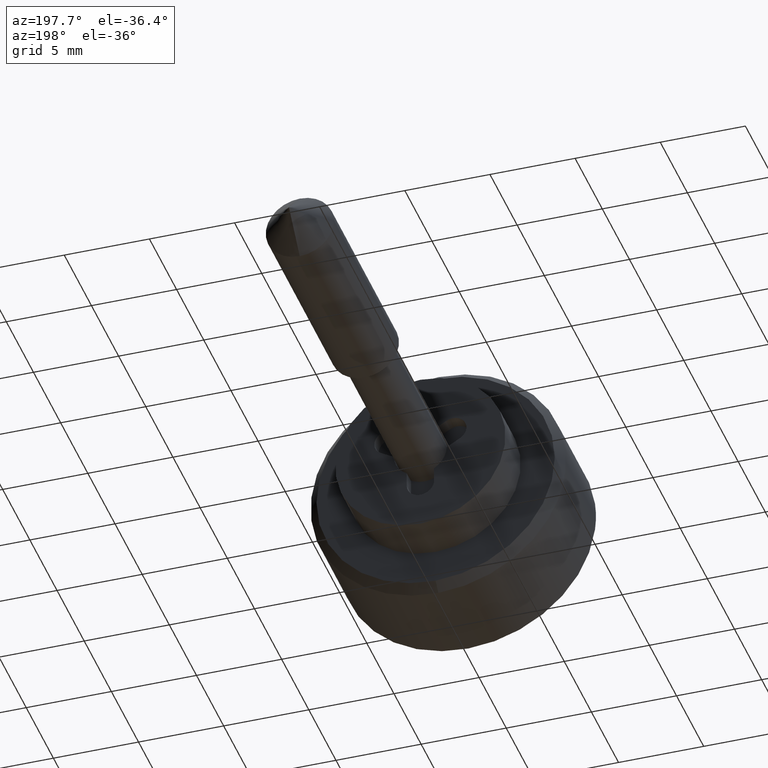
[diagram: clean part render]
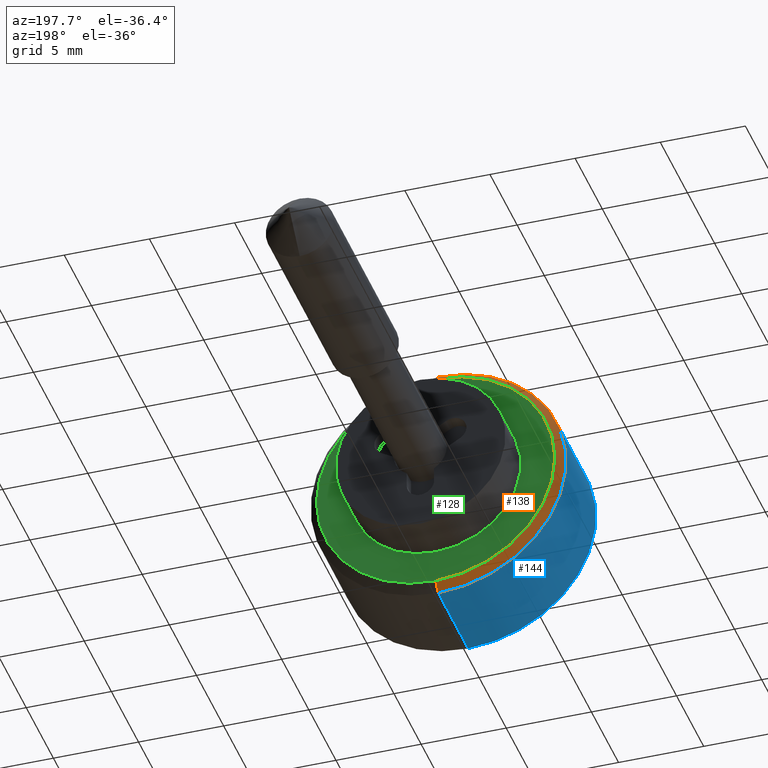
[diagram: same view with three faces highlighted in distinct colors, each labeled with its STEP entity id]
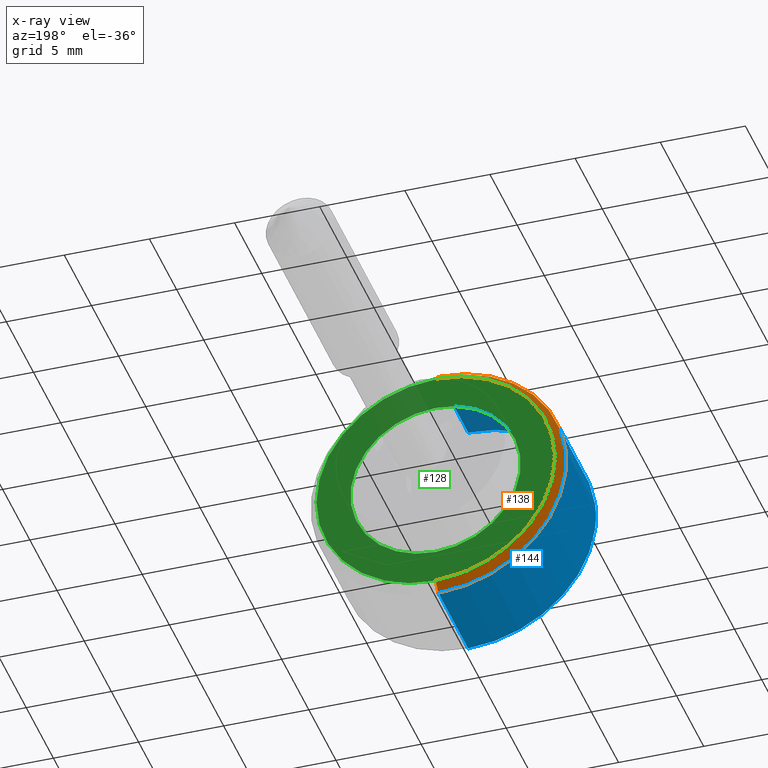
[diagram: x-ray of the same camera — body ghosted, the three highlighted faces saturated]
A machine part, auxiliary view with three faces highlighted in distinct colors.
The next image is the same camera in x-ray (body ghosted, the three faces saturated) — at least one of them is partly hidden behind the body in this view.
Their STEP definitions:

[orange] entity #138 — the highlighted face is a freeform B-spline surface patch.
#138=ADVANCED_FACE('',(#416),#415,.T.);
#415=( BOUNDED_SURFACE() B_SPLINE_SURFACE( 2,1,((#682,#683),(#684,#685),(#686,#687),(#688,#689),(#690,#691)), .UNSPECIFIED.,.F.,.F.,.F.) B_SPLINE_SURFACE_WITH_KNOTS((3,2,3),(2,2),(0.00000000000E+00,5.00000000000E-01,1.00000000000E+00),(0.00000000000E+00,1.00000000000E+00), .UNSPECIFIED. ) GEOMETRIC_REPRESENTATION_ITEM() RATIONAL_B_SPLINE_SURFACE(((1.00000000000E+00,1.00000000000E+00),(7.07106781187E-01,7.07106781187E-01),(1.00000000000E+00,1.00000000000E+00),(7.07106781187E-01,7.07106781187E-01),(1.00000000000E+00,1.00000000000E+00))) REPRESENTATION_ITEM('') SURFACE() );
#416=FACE_OUTER_BOUND('',#692,.T.);
#682=CARTESIAN_POINT('',(5.00000000000E+00,0.00000000000E+00,0.00000000000E+00));
#683=CARTESIAN_POINT('',(-5.60660171780E+00,3.89680225306E-15,1.06066017178E+01));
#684=CARTESIAN_POINT('',(5.00000000000E+00,0.00000000000E+00,0.00000000000E+00));
#685=CARTESIAN_POINT('',(-5.60660171780E+00,1.06066017178E+01,1.06066017178E+01));
#686=CARTESIAN_POINT('',(5.00000000000E+00,0.00000000000E+00,0.00000000000E+00));
#687=CARTESIAN_POINT('',(-5.60660171780E+00,1.06066017178E+01,-3.24733521088E-15));
#688=CARTESIAN_POINT('',(5.00000000000E+00,0.00000000000E+00,0.00000000000E+00));
#689=CARTESIAN_POINT('',(-5.60660171780E+00,1.06066017178E+01,-1.06066017178E+01));
#690=CARTESIAN_POINT('',(5.00000000000E+00,0.00000000000E+00,0.00000000000E+00));
#691=CARTESIAN_POINT('',(-5.60660171780E+00,-2.59786816871E-15,-1.06066017178E+01));
#692=EDGE_LOOP('',(#888,#889,#890,#891));
#888=ORIENTED_EDGE('',*,*,#1008,.F.);
#889=ORIENTED_EDGE('',*,*,#1009,.F.);
#890=ORIENTED_EDGE('',*,*,#980,.F.);
#891=ORIENTED_EDGE('',*,*,#1010,.T.);
#980=EDGE_CURVE('',#1304,#1305,#1306,.T.);
#1008=EDGE_CURVE('',#1494,#1495,#1496,.T.);
#1009=EDGE_CURVE('',#1305,#1494,#1502,.T.);
#1010=EDGE_CURVE('',#1304,#1495,#1508,.T.);
#1304=VERTEX_POINT('',#1763);
#1305=VERTEX_POINT('',#1764);
#1306=CIRCLE('',#1768,7.00000000000E+00);
#1494=VERTEX_POINT('',#1893);
#1495=VERTEX_POINT('',#1894);
#1496=CIRCLE('',#1898,7.50000000000E+00);
#1502=(BOUNDED_CURVE() B_SPLINE_CURVE(1,(#1899,#1900),.UNSPECIFIED.,.F.,.F.) B_SPLINE_CURVE_WITH_KNOTS((2,2),(6.59966328740E-01,7.07106782442E-01),.UNSPECIFIED.) CURVE() GEOMETRIC_REPRESENTATION_ITEM() RATIONAL_B_SPLINE_CURVE((1.00000000000E+00,1.00000000000E+00)) REPRESENTATION_ITEM('') );
#1508=(BOUNDED_CURVE() B_SPLINE_CURVE(1,(#1901,#1902),.UNSPECIFIED.,.F.,.F.) B_SPLINE_CURVE_WITH_KNOTS((2,2),(6.59966329001E-01,7.07106780467E-01),.UNSPECIFIED.) CURVE() GEOMETRIC_REPRESENTATION_ITEM() RATIONAL_B_SPLINE_CURVE((7.50000000000E-01,7.50000000000E-01)) REPRESENTATION_ITEM('') );
#1763=CARTESIAN_POINT('',(-2.00000000000E+00,0.00000000000E+00,-7.00000000000E+00));
#1764=CARTESIAN_POINT('',(-2.00000000000E+00,2.96059473233E-16,7.00000000000E+00));
#1765=CARTESIAN_POINT('',(-2.00000000000E+00,0.00000000000E+00,0.00000000000E+00));
#1766=DIRECTION('',(1.00000000000E+00,0.00000000000E+00,0.00000000000E+00));
#1767=DIRECTION('',(0.00000000000E+00,-1.22460635382E-16,-1.00000000000E+00));
#1768=AXIS2_PLACEMENT_3D('',#1765,#1766,#1767);
#1893=CARTESIAN_POINT('',(-2.50000000000E+00,1.77635683940E-15,7.50000000000E+00));
#1894=CARTESIAN_POINT('',(-2.50000000000E+00,0.00000000000E+00,-7.50000000000E+00));
#1895=CARTESIAN_POINT('',(-2.50000000000E+00,0.00000000000E+00,0.00000000000E+00));
#1896=DIRECTION('',(-1.00000000000E+00,0.00000000000E+00,-0.00000000000E+00));
#1897=DIRECTION('',(0.00000000000E+00,-1.22460635382E-16,-1.00000000000E+00));
#1898=AXIS2_PLACEMENT_3D('',#1895,#1896,#1897);
#1899=CARTESIAN_POINT('',(-1.99999999610E+00,2.57175827678E-15,6.99999999610E+00));
#1900=CARTESIAN_POINT('',(-2.50000001332E+00,2.75545530297E-15,7.50000001332E+00));
#1901=CARTESIAN_POINT('',(-1.99999999887E+00,-2.73544997202E-15,-6.99999999887E+00));
#1902=CARTESIAN_POINT('',(-2.49999999237E+00,-2.93083925323E-15,-7.49999999237E+00));

[blue] entity #144 — the highlighted cylindrical surface (partial cylindrical patch) has radius 7.5 mm, axis along (0, -1, -0).
#144=ADVANCED_FACE('',(#476),#475,.T.);
#475=CYLINDRICAL_SURFACE('',#727,7.50000000000E+00);
#476=FACE_OUTER_BOUND('',#728,.T.);
#724=CARTESIAN_POINT('',(-1.00200000000E+03,0.00000000000E+00,0.00000000000E+00));
#725=DIRECTION('',(-1.00000000000E+00,-0.00000000000E+00,-0.00000000000E+00));
#726=DIRECTION('',(-0.00000000000E+00,-0.00000000000E+00,1.00000000000E+00));
#727=AXIS2_PLACEMENT_3D('',#724,#725,#726);
#728=EDGE_LOOP('',(#912,#913,#914,#915,#916,#917));
#912=ORIENTED_EDGE('',*,*,#992,.F.);
#913=ORIENTED_EDGE('',*,*,#998,.T.);
#914=ORIENTED_EDGE('',*,*,#1007,.F.);
#915=ORIENTED_EDGE('',*,*,#1016,.F.);
#916=ORIENTED_EDGE('',*,*,#1008,.T.);
#917=ORIENTED_EDGE('',*,*,#1017,.T.);
#992=EDGE_CURVE('',#1388,#1389,#1390,.T.);
#998=EDGE_CURVE('',#1388,#1421,#1429,.T.);
#1007=EDGE_CURVE('',#1481,#1421,#1488,.T.);
#1008=EDGE_CURVE('',#1494,#1495,#1496,.T.);
#1016=EDGE_CURVE('',#1494,#1481,#1544,.T.);
#1017=EDGE_CURVE('',#1495,#1389,#1550,.T.);
#1388=VERTEX_POINT('',#1821);
#1389=VERTEX_POINT('',#1822);
#1390=CIRCLE('',#1826,7.50000000000E+00);
#1421=VERTEX_POINT('',#1843);
#1429=CIRCLE('',#1851,7.50000000000E+00);
#1481=VERTEX_POINT('',#1884);
#1488=CIRCLE('',#1892,7.50000000000E+00);
#1494=VERTEX_POINT('',#1893);
#1495=VERTEX_POINT('',#1894);
#1496=CIRCLE('',#1898,7.50000000000E+00);
#1544=(BOUNDED_CURVE() B_SPLINE_CURVE(1,(#1915,#1916),.UNSPECIFIED.,.F.,.F.) B_SPLINE_CURVE_WITH_KNOTS((2,2),(8.33333283663E-02,9.16666668285E-01),.UNSPECIFIED.) CURVE() GEOMETRIC_REPRESENTATION_ITEM() RATIONAL_B_SPLINE_CURVE((1.00000000000E+00,1.00000000000E+00)) REPRESENTATION_ITEM('') );
#1550=(BOUNDED_CURVE() B_SPLINE_CURVE(1,(#1917,#1918),.UNSPECIFIED.,.F.,.F.) B_SPLINE_CURVE_WITH_KNOTS((2,2),(8.33333333333E-02,9.16666666667E-01),.UNSPECIFIED.) CURVE() GEOMETRIC_REPRESENTATION_ITEM() RATIONAL_B_SPLINE_CURVE((7.50000000000E-01,7.50000000000E-01)) REPRESENTATION_ITEM('') );
#1821=CARTESIAN_POINT('',(-7.99990000000E+00,7.44580418759E+00,-9.00000000000E-01));
#1822=CARTESIAN_POINT('',(-7.99990000000E+00,-1.86247738299E-06,-7.50000000000E+00));
#1823=CARTESIAN_POINT('',(-7.99990000000E+00,0.00000000000E+00,0.00000000000E+00));
#1824=DIRECTION('',(-1.00000000000E+00,0.00000000000E+00,0.00000000000E+00));
#1825=DIRECTION('',(-0.00000000000E+00,9.92773891679E-01,-1.20000000000E-01));
#1826=AXIS2_PLACEMENT_3D('',#1823,#1824,#1825);
#1843=CARTESIAN_POINT('',(-7.99990000000E+00,7.44580418759E+00,9.00000000000E-01));
#1848=CARTESIAN_POINT('',(-7.99990000000E+00,0.00000000000E+00,0.00000000000E+00));
#1849=DIRECTION('',(1.00000000000E+00,0.00000000000E+00,-0.00000000000E+00));
#1850=DIRECTION('',(-0.00000000000E+00,-0.00000000000E+00,-1.00000000000E+00));
#1851=AXIS2_PLACEMENT_3D('',#1848,#1849,#1850);
#1884=CARTESIAN_POINT('',(-7.99990000000E+00,-3.78800271254E-10,7.50000000000E+00));
#1889=CARTESIAN_POINT('',(-7.99990000000E+00,0.00000000000E+00,0.00000000000E+00));
#1890=DIRECTION('',(-1.00000000000E+00,0.00000000000E+00,0.00000000000E+00));
#1891=DIRECTION('',(-0.00000000000E+00,-0.00000000000E+00,-1.00000000000E+00));
#1892=AXIS2_PLACEMENT_3D('',#1889,#1890,#1891);
#1893=CARTESIAN_POINT('',(-2.50000000000E+00,1.77635683940E-15,7.50000000000E+00));
#1894=CARTESIAN_POINT('',(-2.50000000000E+00,0.00000000000E+00,-7.50000000000E+00));
#1895=CARTESIAN_POINT('',(-2.50000000000E+00,0.00000000000E+00,0.00000000000E+00));
#1896=DIRECTION('',(-1.00000000000E+00,0.00000000000E+00,-0.00000000000E+00));
#1897=DIRECTION('',(0.00000000000E+00,-1.22460635382E-16,-1.00000000000E+00));
#1898=AXIS2_PLACEMENT_3D('',#1895,#1896,#1897);
#1915=CARTESIAN_POINT('',(-2.49999996722E+00,0.00000000000E+00,7.50000000000E+00));
#1916=CARTESIAN_POINT('',(-7.99990001068E+00,0.00000000000E+00,7.50000000000E+00));
#1917=CARTESIAN_POINT('',(-2.50000000000E+00,-2.96059473233E-16,-7.50000000000E+00));
#1918=CARTESIAN_POINT('',(-7.99990000000E+00,-2.96059473233E-16,-7.50000000000E+00));

[green] entity #128 — the highlighted planar face has unit normal (0, 1, 0).
#128=ADVANCED_FACE('',(#313,#314),#312,.T.);
#312=PLANE('',#620);
#313=FACE_OUTER_BOUND('',#621,.T.);
#314=FACE_BOUND('',#622,.T.);
#617=CARTESIAN_POINT('',(-2.00000000000E+00,-1.45492267836E+01,-9.10000000000E+00));
#618=DIRECTION('',(1.00000000000E+00,0.00000000000E+00,0.00000000000E+00));
#619=DIRECTION('',(0.00000000000E+00,1.00000000000E+00,0.00000000000E+00));
#620=AXIS2_PLACEMENT_3D('',#617,#618,#619);
#621=EDGE_LOOP('',(#850,#851));
#622=EDGE_LOOP('',(#852,#853));
#850=ORIENTED_EDGE('',*,*,#980,.T.);
#851=ORIENTED_EDGE('',*,*,#981,.T.);
#852=ORIENTED_EDGE('',*,*,#982,.T.);
#853=ORIENTED_EDGE('',*,*,#983,.T.);
#980=EDGE_CURVE('',#1304,#1305,#1306,.T.);
#981=EDGE_CURVE('',#1305,#1304,#1312,.T.);
#982=EDGE_CURVE('',#1318,#1319,#1320,.T.);
#983=EDGE_CURVE('',#1319,#1318,#1326,.T.);
#1304=VERTEX_POINT('',#1763);
#1305=VERTEX_POINT('',#1764);
#1306=CIRCLE('',#1768,7.00000000000E+00);
#1312=CIRCLE('',#1772,7.00000000000E+00);
#1318=VERTEX_POINT('',#1773);
#1319=VERTEX_POINT('',#1774);
#1320=CIRCLE('',#1778,5.00000000000E+00);
#1326=CIRCLE('',#1782,5.00000000000E+00);
#1763=CARTESIAN_POINT('',(-2.00000000000E+00,0.00000000000E+00,-7.00000000000E+00));
#1764=CARTESIAN_POINT('',(-2.00000000000E+00,2.96059473233E-16,7.00000000000E+00));
#1765=CARTESIAN_POINT('',(-2.00000000000E+00,0.00000000000E+00,0.00000000000E+00));
#1766=DIRECTION('',(1.00000000000E+00,0.00000000000E+00,0.00000000000E+00));
#1767=DIRECTION('',(0.00000000000E+00,-1.22460635382E-16,-1.00000000000E+00));
#1768=AXIS2_PLACEMENT_3D('',#1765,#1766,#1767);
#1769=CARTESIAN_POINT('',(-2.00000000000E+00,0.00000000000E+00,0.00000000000E+00));
#1770=DIRECTION('',(1.00000000000E+00,0.00000000000E+00,0.00000000000E+00));
#1771=DIRECTION('',(0.00000000000E+00,-1.22460635382E-16,-1.00000000000E+00));
#1772=AXIS2_PLACEMENT_3D('',#1769,#1770,#1771);
#1773=CARTESIAN_POINT('',(-2.00000000000E+00,0.00000000000E+00,-5.00000000000E+00));
#1774=CARTESIAN_POINT('',(-2.00000000000E+00,5.92118946467E-16,5.00000000000E+00));
#1775=CARTESIAN_POINT('',(-2.00000000000E+00,0.00000000000E+00,0.00000000000E+00));
#1776=DIRECTION('',(-1.00000000000E+00,0.00000000000E+00,-0.00000000000E+00));
#1777=DIRECTION('',(0.00000000000E+00,-1.22460635382E-16,-1.00000000000E+00));
#1778=AXIS2_PLACEMENT_3D('',#1775,#1776,#1777);
#1779=CARTESIAN_POINT('',(-2.00000000000E+00,0.00000000000E+00,0.00000000000E+00));
#1780=DIRECTION('',(-1.00000000000E+00,0.00000000000E+00,-0.00000000000E+00));
#1781=DIRECTION('',(0.00000000000E+00,-1.22460635382E-16,-1.00000000000E+00));
#1782=AXIS2_PLACEMENT_3D('',#1779,#1780,#1781);